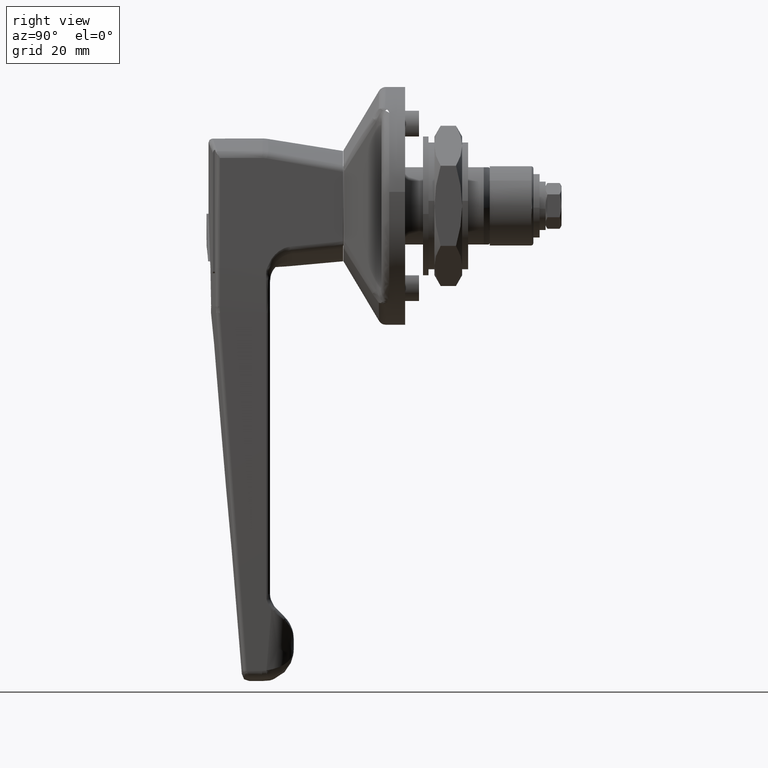
[diagram: clean part render]
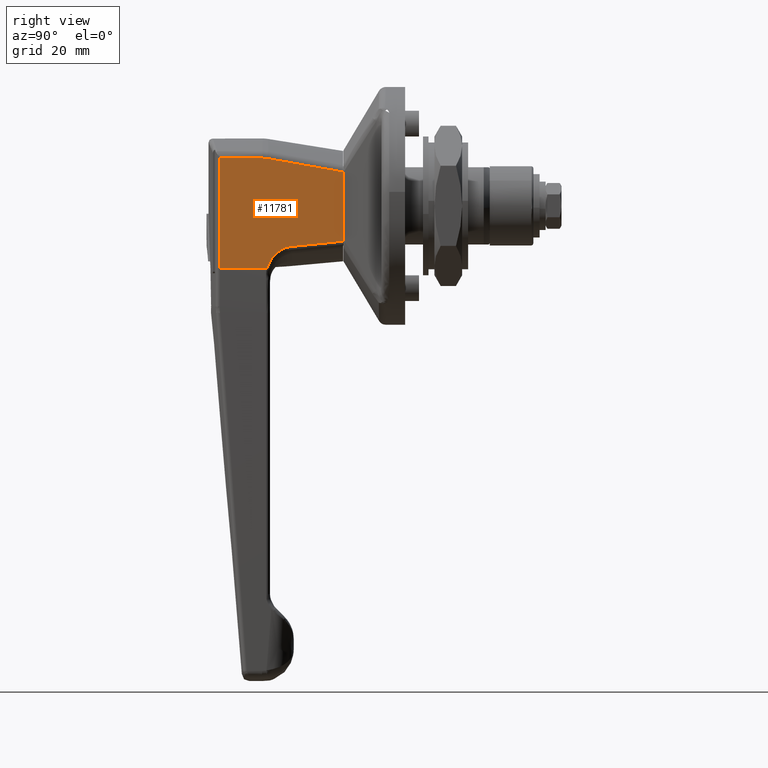
[diagram: same view with one face highlighted and labeled with its STEP entity id]
A machine part, right view. The second image highlights one B-rep face of the part: STEP entity #11781.
In plain terms, the highlighted face is a freeform B-spline surface patch.
Its self-contained STEP definition (entity closure, byte-faithful):
#4695=CARTESIAN_POINT('',(-33.841073701098701,-13.500000000000000,-15.685443348486549));
#4696=VERTEX_POINT('',#4695);
#4735=CARTESIAN_POINT('',(-27.813562268313099,-13.500000000000000,-10.264880556170439));
#4736=VERTEX_POINT('',#4735);
#4746=CARTESIAN_POINT('',(-33.841073701098701,-13.500000000000000,-15.685443348486549));
#4747=CARTESIAN_POINT('',(-33.005737531303090,-13.500000000000000,-13.475647790908621));
#4748=CARTESIAN_POINT('',(-31.662360733542009,-13.500000000000000,-12.145672074840620));
#4749=CARTESIAN_POINT('',(-30.882012563981039,-13.500000000000000,-11.373108399986121));
#4750=CARTESIAN_POINT('',(-29.925050185182990,-13.500000000000000,-10.890837408228821));
#4751=CARTESIAN_POINT('',(-28.903508265276098,-13.500000000000000,-10.376020895322670));
#4752=CARTESIAN_POINT('',(-27.813562268313099,-13.500000000000000,-10.264880556170439));
#4753=B_SPLINE_CURVE_WITH_KNOTS('',2,(#4746,#4747,#4748,#4749,#4750,#4751,#4752),.UNSPECIFIED.,.F.,.U.,(3,2,2,3),(0.0,0.500000000000000,0.750000000000000,1.0),.UNSPECIFIED.);
#4754=EDGE_CURVE('',#4696,#4736,#4753,.T.);
#4779=CARTESIAN_POINT('',(-14.600000000000000,-13.500000000000000,-8.909342005059822));
#4780=VERTEX_POINT('',#4779);
#4803=CARTESIAN_POINT('',(-27.813562268313099,-13.500000000000000,-10.264880556170439));
#4804=CARTESIAN_POINT('',(-23.408694188204130,-13.500000000000000,-9.816426232679877));
#4805=CARTESIAN_POINT('',(-19.004148405370440,-13.500000000000000,-9.364810246071087));
#4806=CARTESIAN_POINT('',(-14.600000000000000,-13.500000000000000,-8.909342005059822));
#4807=QUASI_UNIFORM_CURVE('',3,(#4803,#4804,#4805,#4806),.UNSPECIFIED.,.F.,.U.);
#4808=EDGE_CURVE('',#4736,#4780,#4807,.T.);
#8261=CARTESIAN_POINT('',(-45.760645157680898,-13.500000000000000,-15.685443348486549));
#8262=VERTEX_POINT('',#8261);
#8520=CARTESIAN_POINT('',(-45.760645157680898,-13.500000000000000,12.065374432940899));
#8521=VERTEX_POINT('',#8520);
#8550=CARTESIAN_POINT('',(-45.760645157680898,-13.500000000000000,12.065374432940899));
#8551=CARTESIAN_POINT('',(-45.760645157680898,-13.500000000000000,-15.685443348486549));
#8552=QUASI_UNIFORM_CURVE('',1,(#8550,#8551),.UNSPECIFIED.,.F.,.U.);
#8553=EDGE_CURVE('',#8521,#8262,#8552,.T.);
#8808=CARTESIAN_POINT('',(-33.852668247796302,-13.500000000000000,11.961433840638721));
#8809=VERTEX_POINT('',#8808);
#8823=CARTESIAN_POINT('',(-14.600000000000000,-13.500000000000000,8.543720048810739));
#8824=VERTEX_POINT('',#8823);
#8825=CARTESIAN_POINT('',(-14.600000000000000,-13.500000000000000,8.543720048810739));
#8826=CARTESIAN_POINT('',(-17.806258268571860,-13.500000000000000,9.127533399701546));
#8827=CARTESIAN_POINT('',(-21.014009869103759,-13.500000000000000,9.702934511907387));
#8828=CARTESIAN_POINT('',(-27.431767969375791,-13.500000000000000,10.841034436409970));
#8829=CARTESIAN_POINT('',(-30.641778222516351,-13.500000000000000,11.403712106480510));
#8830=CARTESIAN_POINT('',(-33.852668247796302,-13.500000000000000,11.961433840638721));
#8831=B_SPLINE_CURVE_WITH_KNOTS('',3,(#8825,#8826,#8827,#8828,#8829,#8830),.UNSPECIFIED.,.F.,.U.,(4,2,4),(0.0,0.500000000000000,1.0),.UNSPECIFIED.);
#8832=EDGE_CURVE('',#8824,#8809,#8831,.T.);
#8890=CARTESIAN_POINT('',(-35.057057999999898,-13.500000000000000,12.065374432940899));
#8891=VERTEX_POINT('',#8890);
#8905=CARTESIAN_POINT('',(-33.852668247796302,-13.500000000000000,11.961433840638721));
#8906=CARTESIAN_POINT('',(-34.251148234757324,-13.500000000000000,12.030648646265909));
#8907=CARTESIAN_POINT('',(-34.652604674358592,-13.500000000000000,12.065374432940960));
#8908=CARTESIAN_POINT('',(-35.057057999999898,-13.500000000000000,12.065374432940960));
#8909=QUASI_UNIFORM_CURVE('',3,(#8905,#8906,#8907,#8908),.UNSPECIFIED.,.F.,.U.);
#8910=EDGE_CURVE('',#8809,#8891,#8909,.T.);
#8944=CARTESIAN_POINT('',(-35.057057999999898,-13.500000000000000,12.065374432940899));
#8945=CARTESIAN_POINT('',(-45.760645157680898,-13.500000000000000,12.065374432940899));
#8946=QUASI_UNIFORM_CURVE('',1,(#8944,#8945),.UNSPECIFIED.,.F.,.U.);
#8947=EDGE_CURVE('',#8891,#8521,#8946,.T.);
#11628=CARTESIAN_POINT('',(-14.600000000000000,-13.500000000000000,8.543720048810739));
#11629=CARTESIAN_POINT('',(-14.600000000000000,-13.500000000000000,-8.909342005059822));
#11630=QUASI_UNIFORM_CURVE('',1,(#11628,#11629),.UNSPECIFIED.,.F.,.U.);
#11631=EDGE_CURVE('',#8824,#4780,#11630,.T.);
#11762=CARTESIAN_POINT('',(-47.317120966667019,-13.500000000000000,-17.071596382377550));
#11763=CARTESIAN_POINT('',(-47.317120966667019,-13.500000000000000,13.451528459278491));
#11764=CARTESIAN_POINT('',(-13.043527255590529,-13.500000000000000,-17.071596382377550));
#11765=CARTESIAN_POINT('',(-13.043527255590529,-13.500000000000000,13.451528459278491));
#11766=B_SPLINE_SURFACE_WITH_KNOTS('',1,1,((#11762,#11764),(#11763,#11765)),.UNSPECIFIED.,.F.,.F.,.U.,(2,2),(2,2),(0.0,30.523124841656038),(0.0,34.273593711076487),.UNSPECIFIED.);
#11767=CARTESIAN_POINT('',(-33.841073701098701,-13.500000000000000,-15.685443348486549));
#11768=CARTESIAN_POINT('',(-45.760645157680898,-13.500000000000000,-15.685443348486549));
#11769=QUASI_UNIFORM_CURVE('',1,(#11767,#11768),.UNSPECIFIED.,.F.,.U.);
#11770=EDGE_CURVE('',#4696,#8262,#11769,.T.);
#11771=ORIENTED_EDGE('',*,*,#11770,.F.);
#11772=ORIENTED_EDGE('',*,*,#4754,.T.);
#11773=ORIENTED_EDGE('',*,*,#4808,.T.);
#11774=ORIENTED_EDGE('',*,*,#11631,.F.);
#11775=ORIENTED_EDGE('',*,*,#8832,.T.);
#11776=ORIENTED_EDGE('',*,*,#8910,.T.);
#11777=ORIENTED_EDGE('',*,*,#8947,.T.);
#11778=ORIENTED_EDGE('',*,*,#8553,.T.);
#11779=EDGE_LOOP('',(#11771,#11772,#11773,#11774,#11775,#11776,#11777,#11778));
#11780=FACE_OUTER_BOUND('',#11779,.T.);
#11781=ADVANCED_FACE('',(#11780),#11766,.F.);